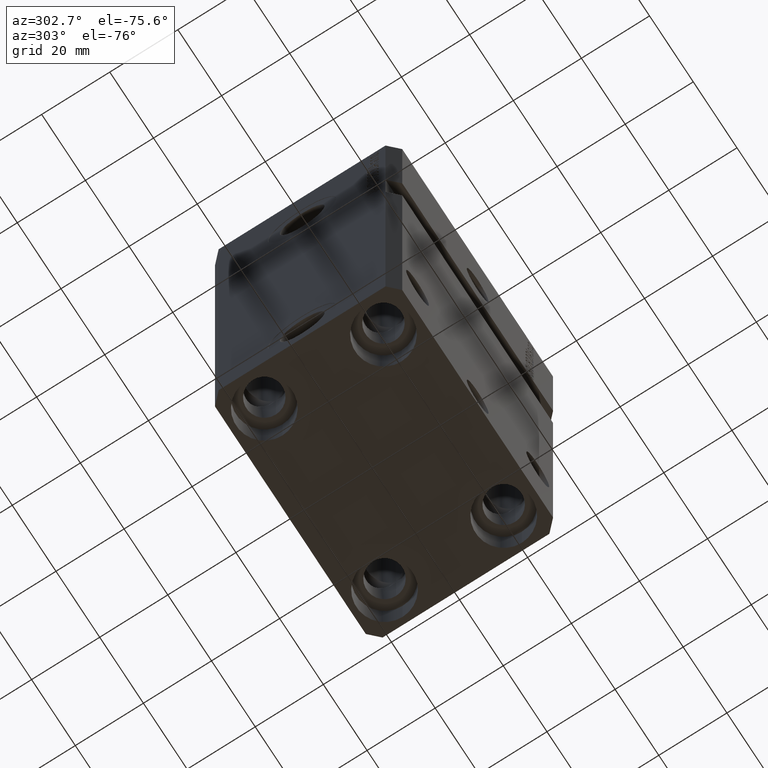
[diagram: clean part render]
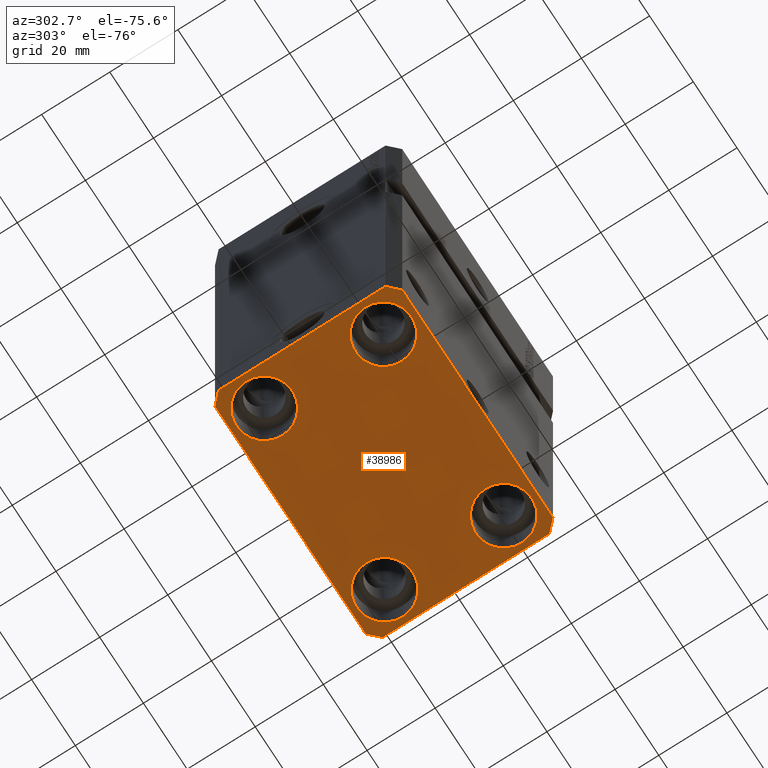
[diagram: same view with one face highlighted and labeled with its STEP entity id]
A machine part, auxiliary view. The second image highlights one B-rep face of the part: STEP entity #38986.
In plain terms, the highlighted planar face has unit normal (0, 0, 1).
Its self-contained STEP definition (entity closure, byte-faithful):
#304 = EDGE_CURVE ( 'NONE', #17702, #2514, #40058, .T. ) ;
#913 = CARTESIAN_POINT ( 'NONE',  ( -37.49999999999999289, 24.50000000000000000, -140.0000000000000000 ) ) ;
#997 = DIRECTION ( 'NONE',  ( -1.000000000000000000, 0.000000000000000000, 0.000000000000000000 ) ) ;
#999 = VERTEX_POINT ( 'NONE', #6686 ) ;
#1134 = VERTEX_POINT ( 'NONE', #7338 ) ;
#1379 = CIRCLE ( 'NONE', #34514, 8.250000000000000000 ) ;
#1479 = EDGE_LOOP ( 'NONE', ( #39243, #29070 ) ) ;
#1783 = VECTOR ( 'NONE', #997, 1000.000000000000000 ) ;
#1786 = DIRECTION ( 'NONE',  ( 1.000000000000000000, 0.000000000000000000, 0.000000000000000000 ) ) ;
#1920 = CARTESIAN_POINT ( 'NONE',  ( -34.49999999999998579, -27.49999999999999645, -140.0000000000000000 ) ) ;
#2095 = DIRECTION ( 'NONE',  ( 1.076236605503979380E-14, 1.000000000000000000, 0.000000000000000000 ) ) ;
#2152 = VERTEX_POINT ( 'NONE', #40029 ) ;
#2482 = VERTEX_POINT ( 'NONE', #34330 ) ;
#2514 = VERTEX_POINT ( 'NONE', #41098 ) ;
#2745 = VERTEX_POINT ( 'NONE', #35650 ) ;
#3040 = CARTESIAN_POINT ( 'NONE',  ( -37.49999999999999289, -24.50000000000000000, -140.0000000000000000 ) ) ;
#3042 = VERTEX_POINT ( 'NONE', #1920 ) ;
#3949 = CARTESIAN_POINT ( 'NONE',  ( 19.25000000000000000, 17.50000000000001066, -140.0000000000000000 ) ) ;
#3972 = VERTEX_POINT ( 'NONE', #3949 ) ;
#4574 = EDGE_CURVE ( 'NONE', #3042, #39673, #40989, .T. ) ;
#5045 = VECTOR ( 'NONE', #5768, 1000.000000000000000 ) ;
#5622 = CARTESIAN_POINT ( 'NONE',  ( -27.50000000000000355, 17.50000000000000000, -140.0000000000000000 ) ) ;
#5768 = DIRECTION ( 'NONE',  ( 0.7071067811865483499, -0.7071067811865466846, 0.000000000000000000 ) ) ;
#5812 = CIRCLE ( 'NONE', #28145, 8.250000000000000000 ) ;
#5841 = CARTESIAN_POINT ( 'NONE',  ( 37.49999999999999289, -24.50000000000000000, -140.0000000000000000 ) ) ;
#6081 = DIRECTION ( 'NONE',  ( -0.000000000000000000, -0.000000000000000000, 1.000000000000000000 ) ) ;
#6686 = CARTESIAN_POINT ( 'NONE',  ( 35.75000000000000711, -17.50000000000000000, -140.0000000000000000 ) ) ;
#6887 = DIRECTION ( 'NONE',  ( -0.000000000000000000, -0.000000000000000000, 1.000000000000000000 ) ) ;
#6944 = EDGE_CURVE ( 'NONE', #999, #14927, #32216, .T. ) ;
#7058 = EDGE_CURVE ( 'NONE', #8478, #2152, #35956, .T. ) ;
#7338 = CARTESIAN_POINT ( 'NONE',  ( 35.74999999999999289, 17.50000000000001066, -140.0000000000000000 ) ) ;
#7678 = DIRECTION ( 'NONE',  ( 0.000000000000000000, -1.000000000000000000, 0.000000000000000000 ) ) ;
#7828 = FACE_BOUND ( 'NONE', #1479, .T. ) ;
#7994 = DIRECTION ( 'NONE',  ( -0.7071067811865471286, -0.7071067811865479058, 0.000000000000000000 ) ) ;
#8047 = FACE_BOUND ( 'NONE', #18899, .T. ) ;
#8278 = AXIS2_PLACEMENT_3D ( 'NONE', #29033, #11883, #21602 ) ;
#8478 = VERTEX_POINT ( 'NONE', #34526 ) ;
#8556 = AXIS2_PLACEMENT_3D ( 'NONE', #20086, #6081, #36993 ) ;
#8582 = ORIENTED_EDGE ( 'NONE', *, *, #35306, .F. ) ;
#8630 = VERTEX_POINT ( 'NONE', #5841 ) ;
#8965 = DIRECTION ( 'NONE',  ( 1.000000000000000000, 0.000000000000000000, 0.000000000000000000 ) ) ;
#9050 = EDGE_CURVE ( 'NONE', #2152, #12315, #13393, .T. ) ;
#9836 = ORIENTED_EDGE ( 'NONE', *, *, #24773, .T. ) ;
#10316 = CARTESIAN_POINT ( 'NONE',  ( 37.50000000000051870, 24.49999999999995381, -140.0000000000000000 ) ) ;
#11305 = DIRECTION ( 'NONE',  ( -0.000000000000000000, -0.000000000000000000, 1.000000000000000000 ) ) ;
#11390 = ORIENTED_EDGE ( 'NONE', *, *, #304, .T. ) ;
#11883 = DIRECTION ( 'NONE',  ( 0.000000000000000000, 0.000000000000000000, 1.000000000000000000 ) ) ;
#12315 = VERTEX_POINT ( 'NONE', #35224 ) ;
#12475 = LINE ( 'NONE', #23532, #24831 ) ;
#12542 = EDGE_CURVE ( 'NONE', #1134, #3972, #30177, .T. ) ;
#13393 = LINE ( 'NONE', #913, #44535 ) ;
#13500 = VECTOR ( 'NONE', #7994, 1000.000000000000000 ) ;
#13550 = DIRECTION ( 'NONE',  ( -0.000000000000000000, -0.000000000000000000, 1.000000000000000000 ) ) ;
#13784 = CARTESIAN_POINT ( 'NONE',  ( 34.49999999999999289, -27.49999999999999645, -140.0000000000000000 ) ) ;
#13869 = EDGE_CURVE ( 'NONE', #12315, #3042, #16135, .T. ) ;
#14224 = EDGE_LOOP ( 'NONE', ( #41744, #31687, #8582, #26811, #34768, #43618, #31354, #30903 ) ) ;
#14554 = ORIENTED_EDGE ( 'NONE', *, *, #42008, .T. ) ;
#14825 = FACE_OUTER_BOUND ( 'NONE', #14224, .T. ) ;
#14927 = VERTEX_POINT ( 'NONE', #39442 ) ;
#14992 = CARTESIAN_POINT ( 'NONE',  ( -34.49999999999999289, 27.50000000000000000, -140.0000000000000000 ) ) ;
#15483 = CARTESIAN_POINT ( 'NONE',  ( -27.50000000000000355, 17.50000000000000000, -140.0000000000000000 ) ) ;
#16135 = LINE ( 'NONE', #3040, #5045 ) ;
#16149 = DIRECTION ( 'NONE',  ( -0.000000000000000000, -0.000000000000000000, 1.000000000000000000 ) ) ;
#16171 = CARTESIAN_POINT ( 'NONE',  ( -27.50000000000000355, -17.50000000000000000, -140.0000000000000000 ) ) ;
#16574 = ORIENTED_EDGE ( 'NONE', *, *, #30682, .T. ) ;
#16813 = DIRECTION ( 'NONE',  ( 1.000000000000000000, 0.000000000000000000, 0.000000000000000000 ) ) ;
#17287 = EDGE_CURVE ( 'NONE', #2482, #31397, #1379, .T. ) ;
#17702 = VERTEX_POINT ( 'NONE', #41296 ) ;
#17715 = EDGE_CURVE ( 'NONE', #39673, #8630, #34313, .T. ) ;
#17718 = AXIS2_PLACEMENT_3D ( 'NONE', #31609, #11305, #18292 ) ;
#17983 = FACE_BOUND ( 'NONE', #26340, .T. ) ;
#18292 = DIRECTION ( 'NONE',  ( 1.000000000000000000, 0.000000000000000000, 0.000000000000000000 ) ) ;
#18468 = CARTESIAN_POINT ( 'NONE',  ( -35.75000000000000711, 17.50000000000000000, -140.0000000000000000 ) ) ;
#18899 = EDGE_LOOP ( 'NONE', ( #14554, #36499 ) ) ;
#19138 = DIRECTION ( 'NONE',  ( -0.000000000000000000, -0.000000000000000000, 1.000000000000000000 ) ) ;
#19169 = DIRECTION ( 'NONE',  ( -0.000000000000000000, -0.000000000000000000, 1.000000000000000000 ) ) ;
#20086 = CARTESIAN_POINT ( 'NONE',  ( 27.49999999999999645, 17.50000000000001066, -140.0000000000000000 ) ) ;
#20464 = CARTESIAN_POINT ( 'NONE',  ( -34.49999999999998579, -27.49999999999999645, -140.0000000000000000 ) ) ;
#20878 = CARTESIAN_POINT ( 'NONE',  ( 27.50000000000000355, -17.50000000000000000, -140.0000000000000000 ) ) ;
#21602 = DIRECTION ( 'NONE',  ( 1.000000000000000000, 0.000000000000000000, -0.000000000000000000 ) ) ;
#22428 = EDGE_LOOP ( 'NONE', ( #9836, #27445 ) ) ;
#22758 = AXIS2_PLACEMENT_3D ( 'NONE', #37912, #13550, #30915 ) ;
#23026 = VECTOR ( 'NONE', #34078, 1000.000000000000114 ) ;
#23532 = CARTESIAN_POINT ( 'NONE',  ( 37.49999999999999289, -24.50000000000000000, -140.0000000000000000 ) ) ;
#23797 = CARTESIAN_POINT ( 'NONE',  ( 37.50000000000051870, 24.49999999999995381, -140.0000000000000000 ) ) ;
#24077 = EDGE_CURVE ( 'NONE', #32479, #2745, #30548, .T. ) ;
#24773 = EDGE_CURVE ( 'NONE', #14927, #999, #41245, .T. ) ;
#24831 = VECTOR ( 'NONE', #2095, 1000.000000000000000 ) ;
#26086 = EDGE_CURVE ( 'NONE', #31397, #2482, #36955, .T. ) ;
#26153 = AXIS2_PLACEMENT_3D ( 'NONE', #5622, #19169, #1786 ) ;
#26340 = EDGE_LOOP ( 'NONE', ( #11390, #16574 ) ) ;
#26811 = ORIENTED_EDGE ( 'NONE', *, *, #17715, .F. ) ;
#27445 = ORIENTED_EDGE ( 'NONE', *, *, #6944, .T. ) ;
#28145 = AXIS2_PLACEMENT_3D ( 'NONE', #16171, #36708, #39653 ) ;
#28819 = FACE_BOUND ( 'NONE', #22428, .T. ) ;
#29033 = CARTESIAN_POINT ( 'NONE',  ( 0.000000000000000000, 0.000000000000000000, -140.0000000000000000 ) ) ;
#29070 = ORIENTED_EDGE ( 'NONE', *, *, #17287, .T. ) ;
#29284 = VECTOR ( 'NONE', #33763, 1000.000000000000000 ) ;
#29727 = CARTESIAN_POINT ( 'NONE',  ( 27.50000000000000355, -17.50000000000000000, -140.0000000000000000 ) ) ;
#30177 = CIRCLE ( 'NONE', #8556, 8.249999999999992895 ) ;
#30548 = LINE ( 'NONE', #23797, #36889 ) ;
#30682 = EDGE_CURVE ( 'NONE', #2514, #17702, #5812, .T. ) ;
#30903 = ORIENTED_EDGE ( 'NONE', *, *, #7058, .F. ) ;
#30915 = DIRECTION ( 'NONE',  ( 1.000000000000000000, 0.000000000000000000, 0.000000000000000000 ) ) ;
#31354 = ORIENTED_EDGE ( 'NONE', *, *, #9050, .F. ) ;
#31397 = VERTEX_POINT ( 'NONE', #18468 ) ;
#31609 = CARTESIAN_POINT ( 'NONE',  ( -27.50000000000000355, -17.50000000000000000, -140.0000000000000000 ) ) ;
#31687 = ORIENTED_EDGE ( 'NONE', *, *, #24077, .F. ) ;
#31905 = LINE ( 'NONE', #32566, #1783 ) ;
#32216 = CIRCLE ( 'NONE', #33638, 8.250000000000000000 ) ;
#32479 = VERTEX_POINT ( 'NONE', #10316 ) ;
#32566 = CARTESIAN_POINT ( 'NONE',  ( 34.50000000000056843, 27.50000000000000000, -140.0000000000000000 ) ) ;
#32835 = CIRCLE ( 'NONE', #22758, 8.249999999999992895 ) ;
#33638 = AXIS2_PLACEMENT_3D ( 'NONE', #20878, #6887, #16813 ) ;
#33763 = DIRECTION ( 'NONE',  ( 1.000000000000000000, 0.000000000000000000, 0.000000000000000000 ) ) ;
#34078 = DIRECTION ( 'NONE',  ( 0.7071067811865474617, 0.7071067811865474617, 0.000000000000000000 ) ) ;
#34149 = DIRECTION ( 'NONE',  ( -0.7071067811865356934, 0.7071067811865594521, 0.000000000000000000 ) ) ;
#34313 = LINE ( 'NONE', #13784, #23026 ) ;
#34330 = CARTESIAN_POINT ( 'NONE',  ( -19.25000000000000355, 17.50000000000000000, -140.0000000000000000 ) ) ;
#34450 = EDGE_CURVE ( 'NONE', #2745, #8478, #31905, .T. ) ;
#34514 = AXIS2_PLACEMENT_3D ( 'NONE', #15483, #16149, #43681 ) ;
#34526 = CARTESIAN_POINT ( 'NONE',  ( -34.49999999999999289, 27.50000000000000000, -140.0000000000000000 ) ) ;
#34768 = ORIENTED_EDGE ( 'NONE', *, *, #4574, .F. ) ;
#35224 = CARTESIAN_POINT ( 'NONE',  ( -37.49999999999999289, -24.50000000000000000, -140.0000000000000000 ) ) ;
#35306 = EDGE_CURVE ( 'NONE', #8630, #32479, #12475, .T. ) ;
#35474 = AXIS2_PLACEMENT_3D ( 'NONE', #29727, #19138, #8965 ) ;
#35650 = CARTESIAN_POINT ( 'NONE',  ( 34.50000000000056843, 27.50000000000000000, -140.0000000000000000 ) ) ;
#35956 = LINE ( 'NONE', #14992, #13500 ) ;
#36499 = ORIENTED_EDGE ( 'NONE', *, *, #12542, .T. ) ;
#36708 = DIRECTION ( 'NONE',  ( -0.000000000000000000, -0.000000000000000000, 1.000000000000000000 ) ) ;
#36889 = VECTOR ( 'NONE', #34149, 1000.000000000000114 ) ;
#36955 = CIRCLE ( 'NONE', #26153, 8.250000000000000000 ) ;
#36993 = DIRECTION ( 'NONE',  ( 1.000000000000000000, 0.000000000000000000, 0.000000000000000000 ) ) ;
#37912 = CARTESIAN_POINT ( 'NONE',  ( 27.49999999999999645, 17.50000000000001066, -140.0000000000000000 ) ) ;
#38986 = ADVANCED_FACE ( 'NONE', ( #17983, #28819, #8047, #7828, #14825 ), #39185, .F. ) ;
#39185 = PLANE ( 'NONE',  #8278 ) ;
#39243 = ORIENTED_EDGE ( 'NONE', *, *, #26086, .T. ) ;
#39442 = CARTESIAN_POINT ( 'NONE',  ( 19.25000000000000000, -17.50000000000000000, -140.0000000000000000 ) ) ;
#39653 = DIRECTION ( 'NONE',  ( 1.000000000000000000, 0.000000000000000000, 0.000000000000000000 ) ) ;
#39673 = VERTEX_POINT ( 'NONE', #39899 ) ;
#39899 = CARTESIAN_POINT ( 'NONE',  ( 34.49999999999999289, -27.49999999999999645, -140.0000000000000000 ) ) ;
#40029 = CARTESIAN_POINT ( 'NONE',  ( -37.49999999999999289, 24.50000000000000000, -140.0000000000000000 ) ) ;
#40058 = CIRCLE ( 'NONE', #17718, 8.250000000000000000 ) ;
#40989 = LINE ( 'NONE', #20464, #29284 ) ;
#41098 = CARTESIAN_POINT ( 'NONE',  ( -19.25000000000000355, -17.50000000000000000, -140.0000000000000000 ) ) ;
#41245 = CIRCLE ( 'NONE', #35474, 8.250000000000000000 ) ;
#41296 = CARTESIAN_POINT ( 'NONE',  ( -35.75000000000000711, -17.50000000000000000, -140.0000000000000000 ) ) ;
#41744 = ORIENTED_EDGE ( 'NONE', *, *, #34450, .F. ) ;
#42008 = EDGE_CURVE ( 'NONE', #3972, #1134, #32835, .T. ) ;
#43618 = ORIENTED_EDGE ( 'NONE', *, *, #13869, .F. ) ;
#43681 = DIRECTION ( 'NONE',  ( 1.000000000000000000, 0.000000000000000000, 0.000000000000000000 ) ) ;
#44535 = VECTOR ( 'NONE', #7678, 1000.000000000000000 ) ;